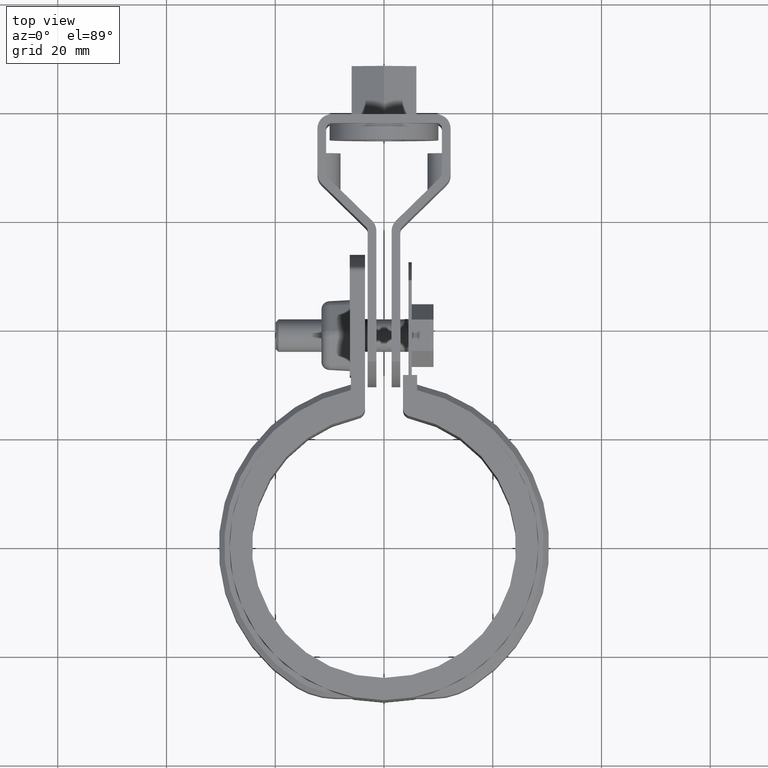
[diagram: clean part render]
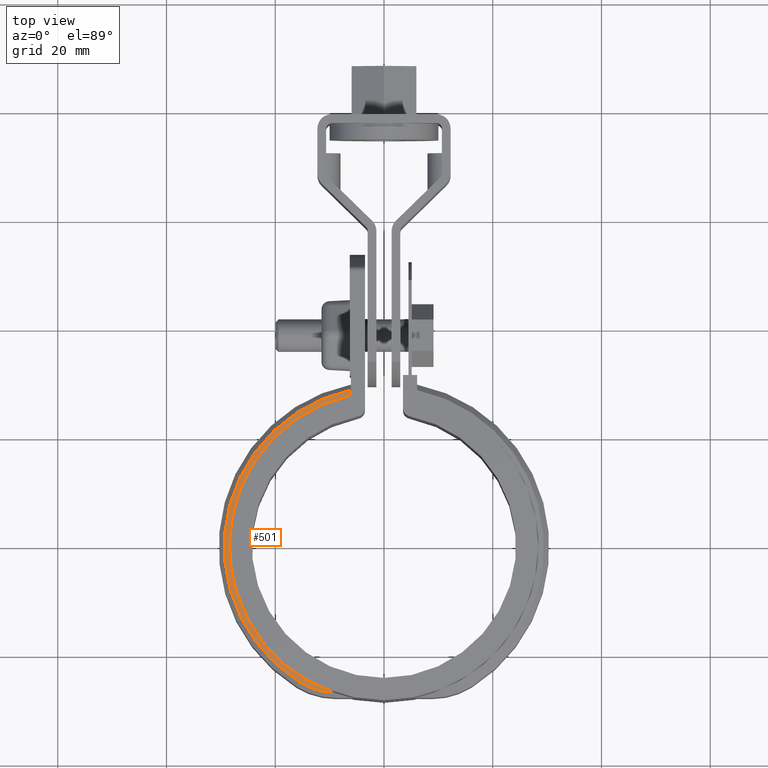
[diagram: same view with one face highlighted and labeled with its STEP entity id]
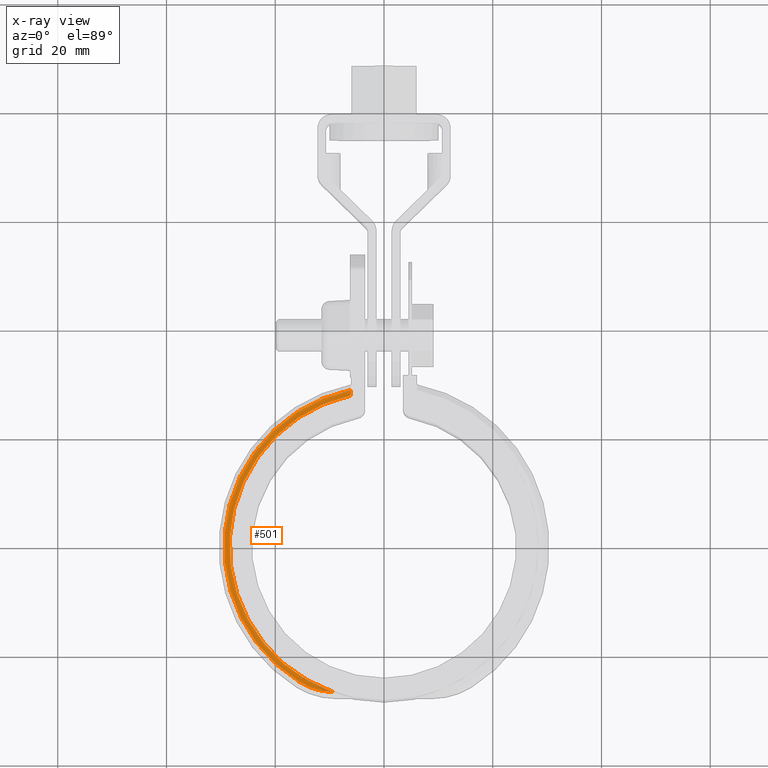
[diagram: x-ray of the same camera — body ghosted, the highlighted face saturated]
A machine part, top view. The second image highlights one B-rep face of the part: STEP entity #501.
The next image is the same camera in x-ray: the body ghosted, the highlighted face saturated — about 0% of this face is hidden behind the body in this view.
In plain terms, the highlighted planar face has unit normal (0, 0, -1).
Its self-contained STEP definition (entity closure, byte-faithful):
#501 = ADVANCED_FACE( '', ( #1003 ), #1004, .F. );
#1003 = FACE_OUTER_BOUND( '', #2388, .T. );
#1004 = PLANE( '', #2389 );
#2388 = EDGE_LOOP( '', ( #5816, #5817, #5818, #5819 ) );
#2389 = AXIS2_PLACEMENT_3D( '', #5820, #5821, #5822 );
#5816 = ORIENTED_EDGE( '', *, *, #8032, .T. );
#5817 = ORIENTED_EDGE( '', *, *, #8058, .T. );
#5818 = ORIENTED_EDGE( '', *, *, #7993, .T. );
#5819 = ORIENTED_EDGE( '', *, *, #8024, .T. );
#5820 = CARTESIAN_POINT( '', ( -8.67361737988404E-016, -3.46944695195361E-015, -5.00000000000000 ) );
#5821 = DIRECTION( '', ( 0.000000000000000, 0.000000000000000, -1.00000000000000 ) );
#5822 = DIRECTION( '', ( 0.000000000000000, -1.00000000000000, 0.000000000000000 ) );
#7993 = EDGE_CURVE( '', #9244, #9245, #9246, .T. );
#8024 = EDGE_CURVE( '', #9245, #9292, #9294, .T. );
#8032 = EDGE_CURVE( '', #9292, #9303, #9305, .F. );
#8058 = EDGE_CURVE( '', #9303, #9244, #9337, .F. );
#9244 = VERTEX_POINT( '', #13141 );
#9245 = VERTEX_POINT( '', #13142 );
#9246 = CIRCLE( '', #13143, 28.3950000000000 );
#9292 = VERTEX_POINT( '', #13219 );
#9294 = LINE( '', #13224, #13225 );
#9303 = VERTEX_POINT( '', #13239 );
#9305 = CIRCLE( '', #13242, 29.3950000000000 );
#9337 = CIRCLE( '', #13446, 12.6000000000000 );
#13141 = CARTESIAN_POINT( '', ( -9.25408003531866, -26.8447020415559, -5.00000000000000 ) );
#13142 = CARTESIAN_POINT( '', ( -6.09999999999999, 27.7320396833699, -5.00000000000000 ) );
#13143 = AXIS2_PLACEMENT_3D( '', #15234, #15235, #15236 );
#13219 = CARTESIAN_POINT( '', ( -6.09999999999999, 28.7551043294925, -5.00000000000000 ) );
#13224 = CARTESIAN_POINT( '', ( -6.09999999999999, -3.07262895682392E-015, -5.00000000000000 ) );
#13225 = VECTOR( '', #15283, 1000.00000000000 );
#13239 = CARTESIAN_POINT( '', ( -15.5572625747343, -24.9406817505210, -5.00000000000000 ) );
#13242 = AXIS2_PLACEMENT_3D( '', #15293, #15294, #15295 );
#13446 = AXIS2_PLACEMENT_3D( '', #15323, #15324, #15325 );
#15234 = CARTESIAN_POINT( '', ( 0.000000000000000, 0.000000000000000, -5.00000000000000 ) );
#15235 = DIRECTION( '', ( 0.000000000000000, 0.000000000000000, -1.00000000000000 ) );
#15236 = DIRECTION( '', ( -1.00000000000000, 0.000000000000000, 0.000000000000000 ) );
#15283 = DIRECTION( '', ( 6.50521303491303E-017, 1.00000000000000, 0.000000000000000 ) );
#15293 = CARTESIAN_POINT( '', ( -8.67361737988404E-016, -3.46944695195361E-015, -5.00000000000000 ) );
#15294 = DIRECTION( '', ( 0.000000000000000, 0.000000000000000, -1.00000000000000 ) );
#15295 = DIRECTION( '', ( -1.00000000000000, 0.000000000000000, 0.000000000000000 ) );
#15323 = CARTESIAN_POINT( '', ( -8.88873022427839, -14.2500000000000, -5.00000000000000 ) );
#15324 = DIRECTION( '', ( 0.000000000000000, 0.000000000000000, -1.00000000000000 ) );
#15325 = DIRECTION( '', ( -1.00000000000000, 0.000000000000000, 0.000000000000000 ) );